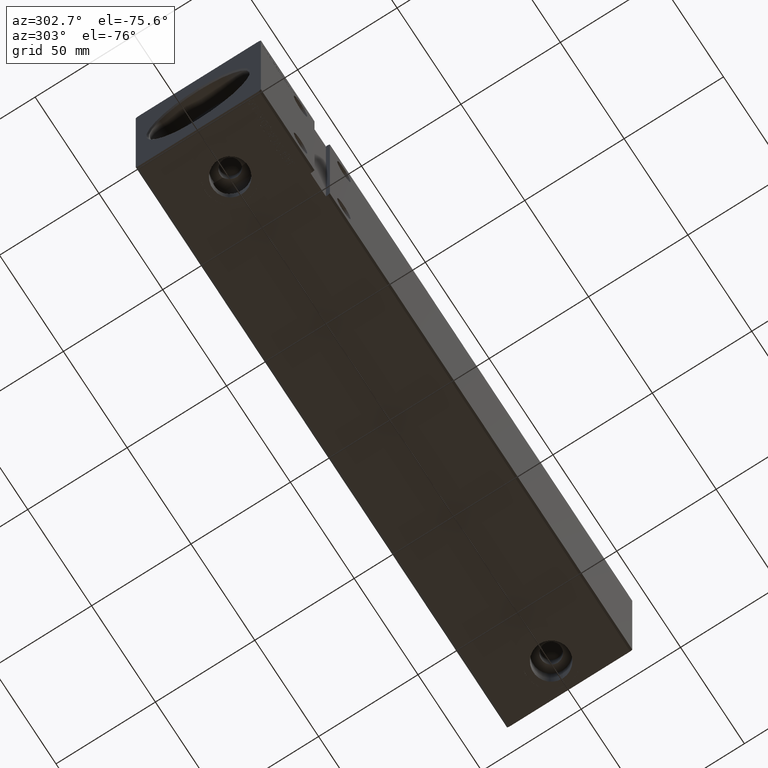
[diagram: clean part render]
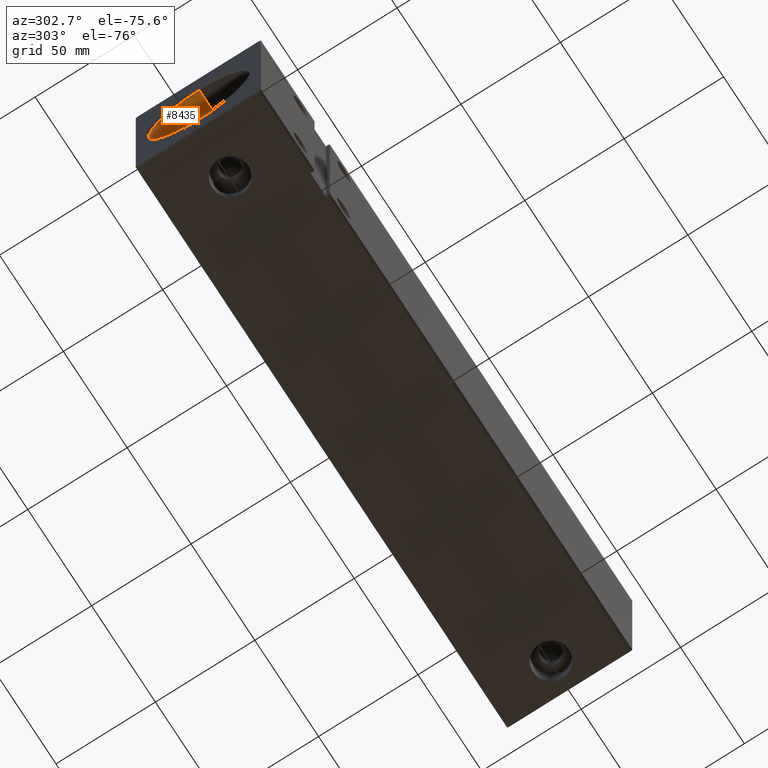
[diagram: same view with one face highlighted and labeled with its STEP entity id]
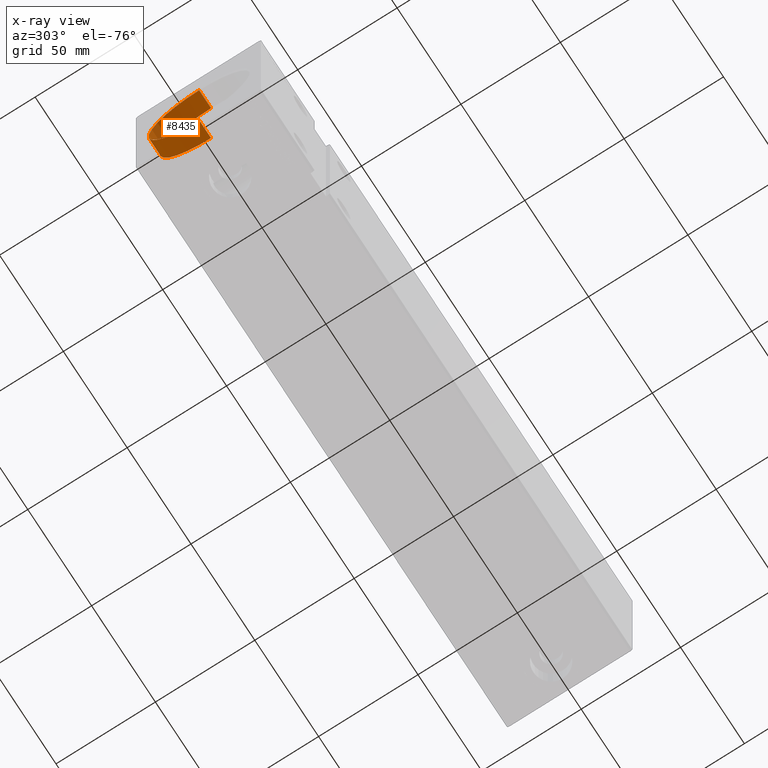
[diagram: x-ray of the same camera — body ghosted, the highlighted face saturated]
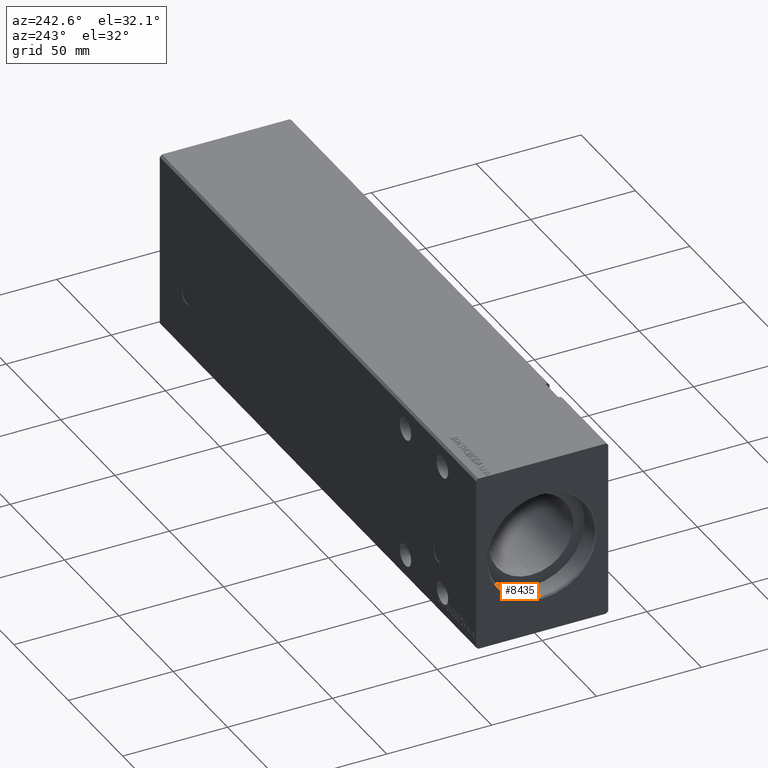
[diagram: same view with one face highlighted and labeled with its STEP entity id]
A machine part, auxiliary view. The second image highlights one B-rep face of the part: STEP entity #8435.
The next image is the same camera in x-ray: the body ghosted, the highlighted face saturated — about 1% of this face is hidden behind the body in this view.
A second angle (auxiliary view) of the same face is appended — the face is thin or edge-on in the first view.
In plain terms, the highlighted cylindrical surface (partial cylindrical patch) has radius 25.5 mm, axis along (-1, -0, -0).
Its self-contained STEP definition (entity closure, byte-faithful):
#804 = EDGE_CURVE ( 'NONE', #4086, #38163, #1849, .T. ) ;
#1849 = CIRCLE ( 'NONE', #7286, 25.50000000000000000 ) ;
#2161 = EDGE_CURVE ( 'NONE', #11304, #10718, #28446, .T. ) ;
#3401 = ORIENTED_EDGE ( 'NONE', *, *, #2161, .F. ) ;
#4086 = VERTEX_POINT ( 'NONE', #7000 ) ;
#4378 = EDGE_CURVE ( 'NONE', #11304, #4086, #35282, .T. ) ;
#5154 = EDGE_LOOP ( 'NONE', ( #27495, #3401, #22590, #21852 ) ) ;
#6189 = LINE ( 'NONE', #19201, #27356 ) ;
#6592 = CARTESIAN_POINT ( 'NONE',  ( 0.7000000000000061728, 3.122849337825750222E-15, -25.50000000000000000 ) ) ;
#7000 = CARTESIAN_POINT ( 'NONE',  ( 0.7000000000000061728, 0.000000000000000000, 25.50000000000000000 ) ) ;
#7286 = AXIS2_PLACEMENT_3D ( 'NONE', #15290, #31249, #21466 ) ;
#8435 = ADVANCED_FACE ( 'NONE', ( #41659 ), #16131, .F. ) ;
#10262 = CARTESIAN_POINT ( 'NONE',  ( 10.00000000000000000, 0.000000000000000000, 0.000000000000000000 ) ) ;
#10718 = VERTEX_POINT ( 'NONE', #16021 ) ;
#11304 = VERTEX_POINT ( 'NONE', #30298 ) ;
#11895 = DIRECTION ( 'NONE',  ( -1.000000000000000000, -0.000000000000000000, -0.000000000000000000 ) ) ;
#13473 = DIRECTION ( 'NONE',  ( -1.000000000000000000, 0.000000000000000000, 0.000000000000000000 ) ) ;
#15290 = CARTESIAN_POINT ( 'NONE',  ( 0.7000000000000061728, 0.000000000000000000, 0.000000000000000000 ) ) ;
#16021 = CARTESIAN_POINT ( 'NONE',  ( 10.00000000000000000, 3.122849337825750222E-15, -25.50000000000000000 ) ) ;
#16131 = CYLINDRICAL_SURFACE ( 'NONE', #33303, 25.50000000000000000 ) ;
#18265 = VECTOR ( 'NONE', #11895, 1000.000000000000000 ) ;
#19201 = CARTESIAN_POINT ( 'NONE',  ( 10.00000000000000000, 3.122849337825750222E-15, -25.50000000000000000 ) ) ;
#19958 = CARTESIAN_POINT ( 'NONE',  ( 10.00000000000000000, 0.000000000000000000, 0.000000000000000000 ) ) ;
#21466 = DIRECTION ( 'NONE',  ( 0.000000000000000000, 0.000000000000000000, -1.000000000000000000 ) ) ;
#21852 = ORIENTED_EDGE ( 'NONE', *, *, #804, .T. ) ;
#22590 = ORIENTED_EDGE ( 'NONE', *, *, #4378, .T. ) ;
#25527 = DIRECTION ( 'NONE',  ( -1.000000000000000000, -0.000000000000000000, -0.000000000000000000 ) ) ;
#26415 = AXIS2_PLACEMENT_3D ( 'NONE', #10262, #13473, #36233 ) ;
#27356 = VECTOR ( 'NONE', #32179, 1000.000000000000000 ) ;
#27495 = ORIENTED_EDGE ( 'NONE', *, *, #27588, .F. ) ;
#27588 = EDGE_CURVE ( 'NONE', #10718, #38163, #6189, .T. ) ;
#28446 = CIRCLE ( 'NONE', #26415, 25.50000000000000000 ) ;
#30298 = CARTESIAN_POINT ( 'NONE',  ( 10.00000000000000000, 0.000000000000000000, 25.50000000000000000 ) ) ;
#31249 = DIRECTION ( 'NONE',  ( -1.000000000000000000, 0.000000000000000000, 0.000000000000000000 ) ) ;
#32179 = DIRECTION ( 'NONE',  ( -1.000000000000000000, -0.000000000000000000, -0.000000000000000000 ) ) ;
#33303 = AXIS2_PLACEMENT_3D ( 'NONE', #19958, #25527, #35903 ) ;
#35282 = LINE ( 'NONE', #38486, #18265 ) ;
#35903 = DIRECTION ( 'NONE',  ( 0.000000000000000000, 0.000000000000000000, 1.000000000000000000 ) ) ;
#36233 = DIRECTION ( 'NONE',  ( 0.000000000000000000, 0.000000000000000000, 1.000000000000000000 ) ) ;
#38163 = VERTEX_POINT ( 'NONE', #6592 ) ;
#38486 = CARTESIAN_POINT ( 'NONE',  ( 10.00000000000000000, 0.000000000000000000, 25.50000000000000000 ) ) ;
#41659 = FACE_OUTER_BOUND ( 'NONE', #5154, .T. ) ;